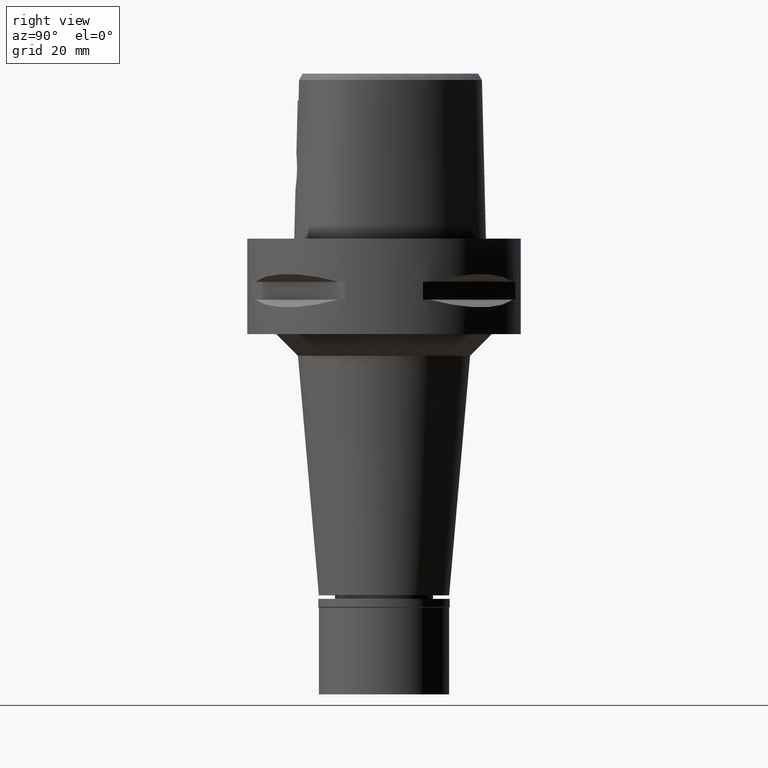
[diagram: clean part render]
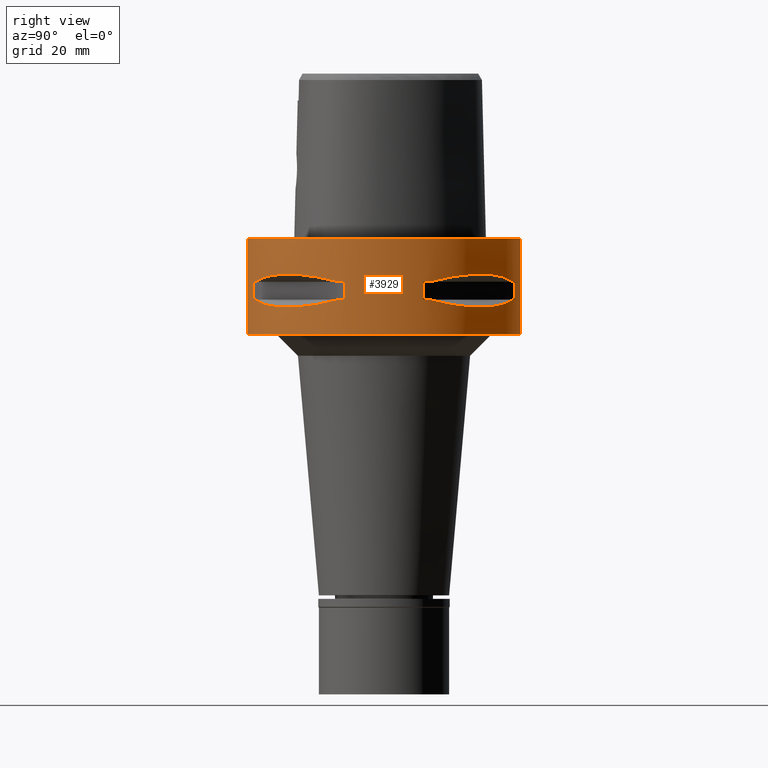
[diagram: same view with one face highlighted and labeled with its STEP entity id]
A machine part, right view. The second image highlights one B-rep face of the part: STEP entity #3929.
In plain terms, the highlighted cylindrical surface (partial cylindrical patch) has radius 31.5 mm, axis along (0, 0, -1).
Its self-contained STEP definition (entity closure, byte-faithful):
#47 = DIRECTION ( 'NONE',  ( 0.0000000000000000000, 0.0000000000000000000, -1.000000000000000000 ) ) ;
#80 = ORIENTED_EDGE ( 'NONE', *, *, #2162, .T. ) ;
#85 = VERTEX_POINT ( 'NONE', #2037 ) ;
#115 = ORIENTED_EDGE ( 'NONE', *, *, #4686, .T. ) ;
#130 = CARTESIAN_POINT ( 'NONE',  ( 12.70097436192362572, 28.92472615202281006, -9.353533115182571578 ) ) ;
#132 = CARTESIAN_POINT ( 'NONE',  ( 30.19251670572000279, 8.981198972017999438, -9.950000000000001066 ) ) ;
#165 = CARTESIAN_POINT ( 'NONE',  ( 18.86897208075581034, -25.32725744465475515, -15.69588095933493932 ) ) ;
#167 = LINE ( 'NONE', #2151, #1222 ) ;
#180 = FACE_OUTER_BOUND ( 'NONE', #223, .T. ) ;
#197 = VERTEX_POINT ( 'NONE', #3954 ) ;
#223 = EDGE_LOOP ( 'NONE', ( #1803, #1271, #896, #2347 ) ) ;
#241 = DIRECTION ( 'NONE',  ( 0.0000000000000000000, 0.0000000000000000000, 1.000000000000000000 ) ) ;
#308 = EDGE_CURVE ( 'NONE', #3439, #2388, #1244, .T. ) ;
#342 = DIRECTION ( 'NONE',  ( 0.0000000000000000000, 0.0000000000000000000, -1.000000000000000000 ) ) ;
#395 = EDGE_CURVE ( 'NONE', #3832, #2908, #852, .T. ) ;
#397 = DIRECTION ( 'NONE',  ( 0.0000000000000000000, -1.000000000000000000, 0.0000000000000000000 ) ) ;
#405 = DIRECTION ( 'NONE',  ( 0.9433937698468619626, -0.3316748332540863653, 0.0000000000000000000 ) ) ;
#413 = DIRECTION ( 'NONE',  ( 0.0000000000000000000, 0.0000000000000000000, -1.000000000000000000 ) ) ;
#452 = VERTEX_POINT ( 'NONE', #2332 ) ;
#458 = EDGE_CURVE ( 'NONE', #1776, #2132, #2190, .T. ) ;
#482 = CARTESIAN_POINT ( 'NONE',  ( 14.89252659056261052, 27.86285265926905197, -15.10765629751539230 ) ) ;
#518 = CARTESIAN_POINT ( 'NONE',  ( 0.0000000000000000000, 0.0000000000000000000, -14.05000000000000071 ) ) ;
#522 = CARTESIAN_POINT ( 'NONE',  ( 25.37277178176730885, 18.81455742151815969, -8.309746333162701504 ) ) ;
#526 = ORIENTED_EDGE ( 'NONE', *, *, #4811, .F. ) ;
#533 = ORIENTED_EDGE ( 'NONE', *, *, #3758, .T. ) ;
#567 = EDGE_LOOP ( 'NONE', ( #533, #1633, #115, #4599, #80, #526, #1249, #2555 ) ) ;
#591 = ORIENTED_EDGE ( 'NONE', *, *, #4437, .T. ) ;
#683 = DIRECTION ( 'NONE',  ( 0.0000000000000000000, 0.0000000000000000000, -1.000000000000000000 ) ) ;
#712 = CIRCLE ( 'NONE', #3408, 31.50000000000000000 ) ;
#746 = DIRECTION ( 'NONE',  ( 0.0000000000000000000, 0.0000000000000000000, 1.000000000000000000 ) ) ;
#754 = CARTESIAN_POINT ( 'NONE',  ( 18.81455742151816324, -25.37277178176729819, -8.309746333162701504 ) ) ;
#756 = CARTESIAN_POINT ( 'NONE',  ( 29.71690375017999841, 10.44775724750000023, -14.05000000000000071 ) ) ;
#759 = CARTESIAN_POINT ( 'NONE',  ( 0.0000000000000000000, 0.0000000000000000000, -14.05000000000000071 ) ) ;
#772 = CARTESIAN_POINT ( 'NONE',  ( 30.19251670572000279, 8.981198972017999438, -14.05000000000000071 ) ) ;
#776 = B_SPLINE_CURVE_WITH_KNOTS ( 'NONE', 3,
 ( #1743, #3678, #2812, #3287, #969, #2900, #4796, #4853, #2121, #1268, #165, #2439, #1961, #3510, #1329, #2492, #779, #2467, #4469, #4003, #4026, #1356, #3611, #3644 ),
 .UNSPECIFIED., .F., .F.,
 ( 4, 1, 1, 1, 1, 1, 2, 2, 2, 1, 1, 1, 1, 1, 2, 2, 4 ),
 ( 0.0000000000000000000, 0.1249999999999912292, 0.1874999999999869826, 0.2187499999999850120, 0.2343749999999839295, 0.2421874999999835409, 0.2460937499999835687, 0.2499999999999836242, 0.4999999999999924505, 0.6249999999999968914, 0.6874999999999992228, 0.7187500000000003331, 0.7343750000000009992, 0.7421875000000014433, 0.7460937500000016653, 0.7500000000000019984, 1.000000000000000000 ),
 .UNSPECIFIED. ) ;
#779 = CARTESIAN_POINT ( 'NONE',  ( 26.29071741523690875, -17.35163608579770766, -15.46976201925451022 ) ) ;
#787 = VECTOR ( 'NONE', #3143, 1000.000000000000000 ) ;
#845 = CARTESIAN_POINT ( 'NONE',  ( 0.0000000000000000000, 31.50000000000000000, 0.0000000000000000000 ) ) ;
#848 = CARTESIAN_POINT ( 'NONE',  ( 0.0000000000000000000, 0.0000000000000000000, -9.950000000000001066 ) ) ;
#852 = LINE ( 'NONE', #2733, #787 ) ;
#887 = VERTEX_POINT ( 'NONE', #2186 ) ;
#896 = ORIENTED_EDGE ( 'NONE', *, *, #1220, .T. ) ;
#909 = DIRECTION ( 'NONE',  ( 0.3316748332540863653, 0.9433937698468619626, 0.0000000000000000000 ) ) ;
#933 = DIRECTION ( 'NONE',  ( 0.9433937698468619626, 0.3316748332540863653, 0.0000000000000000000 ) ) ;
#969 = CARTESIAN_POINT ( 'NONE',  ( 16.03138450079452682, -27.11872488588860008, -15.26880420107959146 ) ) ;
#1110 = CARTESIAN_POINT ( 'NONE',  ( 10.44775724750000023, 29.71690375017999841, -9.949999999998999201 ) ) ;
#1129 = CARTESIAN_POINT ( 'NONE',  ( 18.59229662065117594, 25.43927894891756125, -15.62866126334438732 ) ) ;
#1137 = VECTOR ( 'NONE', #3251, 1000.000000000000000 ) ;
#1149 = CARTESIAN_POINT ( 'NONE',  ( 12.70092055722019531, -28.92474506847807092, -9.353547358250271060 ) ) ;
#1159 = B_SPLINE_CURVE_WITH_KNOTS ( 'NONE', 3,
 ( #756, #2279, #1468, #4632, #4193, #2252, #1870, #3425, #3814, #3839, #3468, #1895, #3447, #5015, #1129, #2675, #3985, #1612, #4700, #1176, #3213, #482, #2371, #3884 ),
 .UNSPECIFIED., .F., .F.,
 ( 4, 1, 1, 1, 1, 1, 2, 2, 2, 1, 1, 1, 1, 1, 2, 2, 4 ),
 ( 0.0000000000000000000, 0.1249999999999912292, 0.1874999999999869826, 0.2187499999999850120, 0.2343749999999839295, 0.2421874999999835409, 0.2460937499999835687, 0.2499999999999836242, 0.4999999999999924505, 0.6249999999999968914, 0.6874999999999992228, 0.7187500000000003331, 0.7343750000000009992, 0.7421875000000014433, 0.7460937500000016653, 0.7500000000000019984, 1.000000000000000000 ),
 .UNSPECIFIED. ) ;
#1166 = CARTESIAN_POINT ( 'NONE',  ( 10.44775724750000023, 29.71690375017999841, -14.05000000000000071 ) ) ;
#1169 = VERTEX_POINT ( 'NONE', #1845 ) ;
#1176 = CARTESIAN_POINT ( 'NONE',  ( 16.98999780422078132, 26.52527364208593141, -15.41788098766319060 ) ) ;
#1179 = EDGE_CURVE ( 'NONE', #4627, #3299, #1159, .T. ) ;
#1184 = EDGE_CURVE ( 'NONE', #452, #4932, #2115, .T. ) ;
#1193 = DIRECTION ( 'NONE',  ( 0.0000000000000000000, 1.000000000000000000, 0.0000000000000000000 ) ) ;
#1220 = EDGE_CURVE ( 'NONE', #887, #3763, #712, .T. ) ;
#1222 = VECTOR ( 'NONE', #241, 1000.000000000000000 ) ;
#1244 = LINE ( 'NONE', #2362, #4063 ) ;
#1249 = ORIENTED_EDGE ( 'NONE', *, *, #458, .T. ) ;
#1257 = CARTESIAN_POINT ( 'NONE',  ( 29.71690375017999841, 10.44775724750000023, -14.05000000000000071 ) ) ;
#1267 = CIRCLE ( 'NONE', #2801, 31.50000000000001776 ) ;
#1268 = CARTESIAN_POINT ( 'NONE',  ( 16.89910283486517528, -26.58330558444475145, -15.40446471307230070 ) ) ;
#1271 = ORIENTED_EDGE ( 'NONE', *, *, #3764, .T. ) ;
#1298 = CARTESIAN_POINT ( 'NONE',  ( 29.71690375017999841, 10.44775724750000023, -9.949999999998999201 ) ) ;
#1304 = AXIS2_PLACEMENT_3D ( 'NONE', #2628, #1897, #4195 ) ;
#1329 = CARTESIAN_POINT ( 'NONE',  ( 25.43927894891756125, -18.59229662065117594, -15.62866126334438732 ) ) ;
#1356 = CARTESIAN_POINT ( 'NONE',  ( 27.86285265926905197, -14.89252659056261052, -15.10765629751539230 ) ) ;
#1360 = AXIS2_PLACEMENT_3D ( 'NONE', #2671, #683, #2693 ) ;
#1377 = CARTESIAN_POINT ( 'NONE',  ( 30.19251670572000279, -8.981198972017999438, -9.950000000000001066 ) ) ;
#1415 = VERTEX_POINT ( 'NONE', #1556 ) ;
#1418 = CARTESIAN_POINT ( 'NONE',  ( 8.981198972017999438, -30.19251670572000279, -14.05000000000000071 ) ) ;
#1468 = CARTESIAN_POINT ( 'NONE',  ( 28.62019653467925551, 13.25636937906381974, -14.74888225542034448 ) ) ;
#1556 = CARTESIAN_POINT ( 'NONE',  ( 30.19251670572000279, -8.981198972019999616, -14.05000000000000071 ) ) ;
#1565 = CARTESIAN_POINT ( 'NONE',  ( 28.92472615202282427, -12.70097436192360973, -9.353533115182571578 ) ) ;
#1567 = DIRECTION ( 'NONE',  ( 0.0000000000000000000, 0.0000000000000000000, 1.000000000000000000 ) ) ;
#1612 = CARTESIAN_POINT ( 'NONE',  ( 17.14106442934748742, 26.42800887047532754, -15.43984550238493547 ) ) ;
#1620 = LINE ( 'NONE', #845, #1137 ) ;
#1633 = ORIENTED_EDGE ( 'NONE', *, *, #308, .F. ) ;
#1667 = EDGE_CURVE ( 'NONE', #2132, #1932, #2678, .T. ) ;
#1673 = VERTEX_POINT ( 'NONE', #4441 ) ;
#1681 = CARTESIAN_POINT ( 'NONE',  ( 27.88214534477226536, 14.84422749186517265, -8.906206096533262340 ) ) ;
#1694 = VERTEX_POINT ( 'NONE', #2546 ) ;
#1743 = CARTESIAN_POINT ( 'NONE',  ( 10.44775724750000023, -29.71690375017999841, -14.05000000000000071 ) ) ;
#1758 = EDGE_LOOP ( 'NONE', ( #2268, #3391, #4813, #2823, #3285, #2243, #591, #5034 ) ) ;
#1759 = FACE_BOUND ( 'NONE', #1758, .T. ) ;
#1776 = VERTEX_POINT ( 'NONE', #4112 ) ;
#1803 = ORIENTED_EDGE ( 'NONE', *, *, #3396, .T. ) ;
#1845 = CARTESIAN_POINT ( 'NONE',  ( 0.0000000000000000000, 31.50000000000000000, 0.0000000000000000000 ) ) ;
#1869 = AXIS2_PLACEMENT_3D ( 'NONE', #518, #413, #933 ) ;
#1870 = CARTESIAN_POINT ( 'NONE',  ( 26.70521063584408950, 16.70616724746141202, -15.37546661817775373 ) ) ;
#1887 = DIRECTION ( 'NONE',  ( 0.3316748332540863653, -0.9433937698468619626, 0.0000000000000000000 ) ) ;
#1895 = CARTESIAN_POINT ( 'NONE',  ( 23.89673728055697310, 20.65093790435582122, -15.83935804901768307 ) ) ;
#1897 = DIRECTION ( 'NONE',  ( 0.0000000000000000000, 0.0000000000000000000, 1.000000000000000000 ) ) ;
#1920 = CARTESIAN_POINT ( 'NONE',  ( 29.71690375017999841, -10.44775724750000023, -9.949999999998999201 ) ) ;
#1932 = VERTEX_POINT ( 'NONE', #1110 ) ;
#1961 = CARTESIAN_POINT ( 'NONE',  ( 23.08532645888130830, -21.46242677078074834, -15.83938991065315172 ) ) ;
#2018 = CIRCLE ( 'NONE', #4718, 31.50000000000000711 ) ;
#2037 = CARTESIAN_POINT ( 'NONE',  ( 10.44775724750000023, -29.71690375017999841, -9.949999999998999201 ) ) ;
#2055 = CARTESIAN_POINT ( 'NONE',  ( 0.0000000000000000000, 31.50000000000000000, -22.00000000000000000 ) ) ;
#2084 = CARTESIAN_POINT ( 'NONE',  ( 14.84430321591224278, 27.88210502977329597, -8.906184731931707788 ) ) ;
#2115 = CIRCLE ( 'NONE', #2829, 31.50000000000000711 ) ;
#2119 = AXIS2_PLACEMENT_3D ( 'NONE', #848, #4411, #909 ) ;
#2121 = CARTESIAN_POINT ( 'NONE',  ( 16.86571563436727317, -26.60451452154724805, -15.39949295786030348 ) ) ;
#2132 = VERTEX_POINT ( 'NONE', #3547 ) ;
#2151 = CARTESIAN_POINT ( 'NONE',  ( 30.19251670572000279, -8.981198972017999438, -14.05000000000000071 ) ) ;
#2162 = EDGE_CURVE ( 'NONE', #4627, #3327, #2674, .T. ) ;
#2186 = CARTESIAN_POINT ( 'NONE',  ( 0.0000000000000000000, -31.50000000000000000, -22.00000000000000000 ) ) ;
#2190 = CIRCLE ( 'NONE', #4221, 31.50000000000001776 ) ;
#2211 = DIRECTION ( 'NONE',  ( 0.0000000000000000000, 0.0000000000000000000, -1.000000000000000000 ) ) ;
#2219 = CARTESIAN_POINT ( 'NONE',  ( 8.981198972019999616, 30.19251670572000279, -14.05000000000000071 ) ) ;
#2243 = ORIENTED_EDGE ( 'NONE', *, *, #395, .F. ) ;
#2252 = CARTESIAN_POINT ( 'NONE',  ( 26.84474411198545596, 16.48208282229538213, -15.34094883778132790 ) ) ;
#2254 = EDGE_CURVE ( 'NONE', #1169, #3763, #1620, .T. ) ;
#2268 = ORIENTED_EDGE ( 'NONE', *, *, #1184, .T. ) ;
#2279 = CARTESIAN_POINT ( 'NONE',  ( 29.31542262584164504, 11.58970337495982328, -14.35229357167352049 ) ) ;
#2313 = CARTESIAN_POINT ( 'NONE',  ( 0.0000000000000000000, 0.0000000000000000000, -14.05000000000000071 ) ) ;
#2317 = CARTESIAN_POINT ( 'NONE',  ( 20.64154884334739393, -23.90617837140509039, -8.160627831333192361 ) ) ;
#2319 = DIRECTION ( 'NONE',  ( 0.0000000000000000000, 0.0000000000000000000, 1.000000000000000000 ) ) ;
#2332 = CARTESIAN_POINT ( 'NONE',  ( 29.71690375017999841, -10.44775724750000023, -9.949999999998999201 ) ) ;
#2346 = AXIS2_PLACEMENT_3D ( 'NONE', #4489, #2211, #397 ) ;
#2347 = ORIENTED_EDGE ( 'NONE', *, *, #2254, .F. ) ;
#2362 = CARTESIAN_POINT ( 'NONE',  ( 8.981198972017999438, 30.19251670572000279, -14.05000000000000071 ) ) ;
#2371 = CARTESIAN_POINT ( 'NONE',  ( 12.73197616787212993, 28.91382665369246752, -14.65467361753630549 ) ) ;
#2388 = VERTEX_POINT ( 'NONE', #3606 ) ;
#2393 = VECTOR ( 'NONE', #3704, 1000.000000000000000 ) ;
#2430 = B_SPLINE_CURVE_WITH_KNOTS ( 'NONE', 3,
 ( #4654, #1149, #4261, #754, #2317, #3879, #3492, #5063, #1565, #1920 ),
 .UNSPECIFIED., .F., .F.,
 ( 4, 2, 2, 2, 4 ),
 ( 0.0000000000000000000, 0.2500000000000001110, 0.5000000000000000000, 0.7500000000000000000, 1.000000000000000000 ),
 .UNSPECIFIED. ) ;
#2431 = CIRCLE ( 'NONE', #1304, 31.50000000000001776 ) ;
#2439 = CARTESIAN_POINT ( 'NONE',  ( 20.65093790435582122, -23.89673728055697310, -15.83935804901768307 ) ) ;
#2467 = CARTESIAN_POINT ( 'NONE',  ( 26.42800887047532754, -17.14106442934748742, -15.43984550238493547 ) ) ;
#2492 = CARTESIAN_POINT ( 'NONE',  ( 26.01217882834739470, -17.76952662671988392, -15.52665221626113912 ) ) ;
#2546 = CARTESIAN_POINT ( 'NONE',  ( 10.44775724750000023, -29.71690375017999841, -14.05000000000000071 ) ) ;
#2555 = ORIENTED_EDGE ( 'NONE', *, *, #1667, .T. ) ;
#2628 = CARTESIAN_POINT ( 'NONE',  ( 0.0000000000000000000, 0.0000000000000000000, -9.950000000000001066 ) ) ;
#2671 = CARTESIAN_POINT ( 'NONE',  ( 0.0000000000000000000, 0.0000000000000000000, -14.05000000000000071 ) ) ;
#2674 = CIRCLE ( 'NONE', #1869, 31.50000000000000711 ) ;
#2675 = CARTESIAN_POINT ( 'NONE',  ( 17.76952662671988392, 26.01217882834739470, -15.52665221626113912 ) ) ;
#2678 = B_SPLINE_CURVE_WITH_KNOTS ( 'NONE', 3,
 ( #1298, #3610, #1681, #522, #3227, #4794, #2844, #2084, #130, #2872 ),
 .UNSPECIFIED., .F., .F.,
 ( 4, 2, 2, 2, 4 ),
 ( 0.0000000000000000000, 0.2500000000000000000, 0.5000000000000000000, 0.7500000000000000000, 1.000000000000000000 ),
 .UNSPECIFIED. ) ;
#2693 = DIRECTION ( 'NONE',  ( 0.2851174276831918153, 0.9584925938322735872, 0.0000000000000000000 ) ) ;
#2733 = CARTESIAN_POINT ( 'NONE',  ( 8.981198972017999438, -30.19251670572000279, -9.950000000000001066 ) ) ;
#2758 = AXIS2_PLACEMENT_3D ( 'NONE', #4304, #3262, #1193 ) ;
#2796 = CARTESIAN_POINT ( 'NONE',  ( 0.0000000000000000000, 0.0000000000000000000, -9.950000000000001066 ) ) ;
#2801 = AXIS2_PLACEMENT_3D ( 'NONE', #759, #4291, #3520 ) ;
#2812 = CARTESIAN_POINT ( 'NONE',  ( 13.25636937906381974, -28.62019653467925551, -14.74888225542034448 ) ) ;
#2823 = ORIENTED_EDGE ( 'NONE', *, *, #4715, .F. ) ;
#2829 = AXIS2_PLACEMENT_3D ( 'NONE', #2796, #2319, #405 ) ;
#2844 = CARTESIAN_POINT ( 'NONE',  ( 18.81462633043445010, 25.37272068390330659, -8.309724968561150504 ) ) ;
#2845 = LINE ( 'NONE', #132, #2393 ) ;
#2872 = CARTESIAN_POINT ( 'NONE',  ( 10.44775724750000023, 29.71690375017999841, -9.949999999998999201 ) ) ;
#2900 = CARTESIAN_POINT ( 'NONE',  ( 16.48208282229538213, -26.84474411198545596, -15.34094883778132790 ) ) ;
#2908 = VERTEX_POINT ( 'NONE', #1418 ) ;
#2916 = CYLINDRICAL_SURFACE ( 'NONE', #2346, 31.50000000000000000 ) ;
#2999 = CIRCLE ( 'NONE', #2119, 31.50000000000000711 ) ;
#3143 = DIRECTION ( 'NONE',  ( 0.0000000000000000000, 0.0000000000000000000, -1.000000000000000000 ) ) ;
#3186 = CARTESIAN_POINT ( 'NONE',  ( 0.0000000000000000000, 0.0000000000000000000, -22.00000000000000000 ) ) ;
#3213 = CARTESIAN_POINT ( 'NONE',  ( 16.96123479564944247, 26.54368690921640450, -15.41365572341321766 ) ) ;
#3225 = CARTESIAN_POINT ( 'NONE',  ( 0.0000000000000000000, -31.50000000000000000, 0.0000000000000000000 ) ) ;
#3227 = CARTESIAN_POINT ( 'NONE',  ( 23.90617837140503354, 20.64154884334747209, -8.160627831333194138 ) ) ;
#3251 = DIRECTION ( 'NONE',  ( 0.0000000000000000000, 0.0000000000000000000, -1.000000000000000000 ) ) ;
#3262 = DIRECTION ( 'NONE',  ( 0.0000000000000000000, 0.0000000000000000000, -1.000000000000000000 ) ) ;
#3285 = ORIENTED_EDGE ( 'NONE', *, *, #4062, .T. ) ;
#3287 = CARTESIAN_POINT ( 'NONE',  ( 15.11986997311774417, -27.64634172017658642, -15.11207862404057423 ) ) ;
#3299 = VERTEX_POINT ( 'NONE', #1166 ) ;
#3327 = VERTEX_POINT ( 'NONE', #772 ) ;
#3391 = ORIENTED_EDGE ( 'NONE', *, *, #3433, .F. ) ;
#3396 = EDGE_CURVE ( 'NONE', #1169, #197, #4317, .T. ) ;
#3408 = AXIS2_PLACEMENT_3D ( 'NONE', #3186, #1567, #3913 ) ;
#3425 = CARTESIAN_POINT ( 'NONE',  ( 26.64486562695712379, 16.80193241490734835, -15.38992683735741451 ) ) ;
#3433 = EDGE_CURVE ( 'NONE', #1415, #4932, #167, .T. ) ;
#3439 = VERTEX_POINT ( 'NONE', #2219 ) ;
#3447 = CARTESIAN_POINT ( 'NONE',  ( 21.46242677078074834, 23.08532645888130830, -15.83938991065315172 ) ) ;
#3468 = CARTESIAN_POINT ( 'NONE',  ( 25.32725744465475515, 18.86897208075581034, -15.69588095933493932 ) ) ;
#3492 = CARTESIAN_POINT ( 'NONE',  ( 25.37272068390325330, -18.81462633043451405, -8.309724968561150504 ) ) ;
#3510 = CARTESIAN_POINT ( 'NONE',  ( 24.23018836745477245, -20.18579225686149314, -15.78559396979075125 ) ) ;
#3520 = DIRECTION ( 'NONE',  ( 0.9584925938322735872, -0.2851174276831918153, 0.0000000000000000000 ) ) ;
#3527 = DIRECTION ( 'NONE',  ( 0.9584925938322735872, 0.2851174276831918153, 0.0000000000000000000 ) ) ;
#3532 = CIRCLE ( 'NONE', #1360, 31.50000000000001776 ) ;
#3547 = CARTESIAN_POINT ( 'NONE',  ( 29.71690375017999841, 10.44775724750000023, -9.949999999998999201 ) ) ;
#3606 = CARTESIAN_POINT ( 'NONE',  ( 8.981198972017999438, 30.19251670572000279, -9.950000000000001066 ) ) ;
#3610 = CARTESIAN_POINT ( 'NONE',  ( 28.92474506847807803, 12.70092055722014379, -9.353547358250267507 ) ) ;
#3611 = CARTESIAN_POINT ( 'NONE',  ( 28.91382665369246752, -12.73197616787212993, -14.65467361753630549 ) ) ;
#3644 = CARTESIAN_POINT ( 'NONE',  ( 29.71690375017999841, -10.44775724750000023, -14.05000000000000071 ) ) ;
#3678 = CARTESIAN_POINT ( 'NONE',  ( 11.58970337495982328, -29.31542262584164504, -14.35229357167352049 ) ) ;
#3704 = DIRECTION ( 'NONE',  ( 0.0000000000000000000, 0.0000000000000000000, -1.000000000000000000 ) ) ;
#3758 = EDGE_CURVE ( 'NONE', #1932, #2388, #2999, .T. ) ;
#3763 = VERTEX_POINT ( 'NONE', #2055 ) ;
#3764 = EDGE_CURVE ( 'NONE', #197, #887, #4790, .T. ) ;
#3814 = CARTESIAN_POINT ( 'NONE',  ( 26.60451452154724805, 16.86571563436727317, -15.39949295786030348 ) ) ;
#3832 = VERTEX_POINT ( 'NONE', #4894 ) ;
#3839 = CARTESIAN_POINT ( 'NONE',  ( 26.58330558444475145, 16.89910283486517528, -15.40446471307230070 ) ) ;
#3879 = CARTESIAN_POINT ( 'NONE',  ( 23.90617837140503710, -20.64154884334746143, -8.160613588441446353 ) ) ;
#3884 = CARTESIAN_POINT ( 'NONE',  ( 10.44775724750000023, 29.71690375017999841, -14.05000000000000071 ) ) ;
#3913 = DIRECTION ( 'NONE',  ( 0.0000000000000000000, -1.000000000000000000, 0.0000000000000000000 ) ) ;
#3924 = DIRECTION ( 'NONE',  ( 0.0000000000000000000, 0.0000000000000000000, 1.000000000000000000 ) ) ;
#3929 = ADVANCED_FACE ( 'NONE', ( #180, #1759, #4869 ), #2916, .T. ) ;
#3954 = CARTESIAN_POINT ( 'NONE',  ( 0.0000000000000000000, -31.50000000000000000, 0.0000000000000000000 ) ) ;
#3985 = CARTESIAN_POINT ( 'NONE',  ( 17.35163608579770766, 26.29071741523690875, -15.46976201925451022 ) ) ;
#4003 = CARTESIAN_POINT ( 'NONE',  ( 26.52527364208593141, -16.98999780422078132, -15.41788098766319060 ) ) ;
#4026 = CARTESIAN_POINT ( 'NONE',  ( 26.54368690921640450, -16.96123479564944247, -15.41365572341321766 ) ) ;
#4062 = EDGE_CURVE ( 'NONE', #1694, #2908, #2018, .T. ) ;
#4063 = VECTOR ( 'NONE', #3924, 1000.000000000000000 ) ;
#4112 = CARTESIAN_POINT ( 'NONE',  ( 30.19251670572000279, 8.981198972019999616, -9.950000000000001066 ) ) ;
#4193 = CARTESIAN_POINT ( 'NONE',  ( 27.11872488588860008, 16.03138450079452682, -15.26880420107959146 ) ) ;
#4195 = DIRECTION ( 'NONE',  ( 0.2851174276831918153, -0.9584925938322735872, 0.0000000000000000000 ) ) ;
#4217 = EDGE_CURVE ( 'NONE', #85, #452, #2430, .T. ) ;
#4221 = AXIS2_PLACEMENT_3D ( 'NONE', #4254, #746, #3527 ) ;
#4254 = CARTESIAN_POINT ( 'NONE',  ( 0.0000000000000000000, 0.0000000000000000000, -9.950000000000001066 ) ) ;
#4261 = CARTESIAN_POINT ( 'NONE',  ( 14.84422749186521351, -27.88214534477224049, -8.906206096533258787 ) ) ;
#4291 = DIRECTION ( 'NONE',  ( 0.0000000000000000000, 0.0000000000000000000, -1.000000000000000000 ) ) ;
#4304 = CARTESIAN_POINT ( 'NONE',  ( 0.0000000000000000000, 0.0000000000000000000, 0.0000000000000000000 ) ) ;
#4317 = CIRCLE ( 'NONE', #2758, 31.50000000000000000 ) ;
#4411 = DIRECTION ( 'NONE',  ( 0.0000000000000000000, 0.0000000000000000000, 1.000000000000000000 ) ) ;
#4437 = EDGE_CURVE ( 'NONE', #3832, #85, #2431, .T. ) ;
#4441 = CARTESIAN_POINT ( 'NONE',  ( 29.71690375017999841, -10.44775724750000023, -14.05000000000000071 ) ) ;
#4469 = CARTESIAN_POINT ( 'NONE',  ( 26.48642424310472876, -17.05047092244258522, -15.42670883407663496 ) ) ;
#4489 = CARTESIAN_POINT ( 'NONE',  ( 0.0000000000000000000, 0.0000000000000000000, 4.915000000000000036 ) ) ;
#4599 = ORIENTED_EDGE ( 'NONE', *, *, #1179, .F. ) ;
#4627 = VERTEX_POINT ( 'NONE', #1257 ) ;
#4632 = CARTESIAN_POINT ( 'NONE',  ( 27.64634172017658642, 15.11986997311774417, -15.11207862404057423 ) ) ;
#4654 = CARTESIAN_POINT ( 'NONE',  ( 10.44775724750000023, -29.71690375017999841, -9.949999999998999201 ) ) ;
#4686 = EDGE_CURVE ( 'NONE', #3439, #3299, #3532, .T. ) ;
#4700 = CARTESIAN_POINT ( 'NONE',  ( 17.05047092244258522, 26.48642424310472876, -15.42670883407663496 ) ) ;
#4715 = EDGE_CURVE ( 'NONE', #1694, #1673, #776, .T. ) ;
#4718 = AXIS2_PLACEMENT_3D ( 'NONE', #2313, #342, #1887 ) ;
#4790 = LINE ( 'NONE', #3225, #4964 ) ;
#4794 = CARTESIAN_POINT ( 'NONE',  ( 20.64154884334739037, 23.90617837140508684, -8.160613588441446353 ) ) ;
#4796 = CARTESIAN_POINT ( 'NONE',  ( 16.70616724746141202, -26.70521063584408950, -15.37546661817775373 ) ) ;
#4811 = EDGE_CURVE ( 'NONE', #1776, #3327, #2845, .T. ) ;
#4813 = ORIENTED_EDGE ( 'NONE', *, *, #4996, .T. ) ;
#4853 = CARTESIAN_POINT ( 'NONE',  ( 16.80193241490734835, -26.64486562695712379, -15.38992683735741451 ) ) ;
#4869 = FACE_BOUND ( 'NONE', #567, .T. ) ;
#4894 = CARTESIAN_POINT ( 'NONE',  ( 8.981198972019999616, -30.19251670572000279, -9.950000000000001066 ) ) ;
#4932 = VERTEX_POINT ( 'NONE', #1377 ) ;
#4964 = VECTOR ( 'NONE', #47, 1000.000000000000000 ) ;
#4996 = EDGE_CURVE ( 'NONE', #1415, #1673, #1267, .T. ) ;
#5015 = CARTESIAN_POINT ( 'NONE',  ( 20.18579225686149314, 24.23018836745477245, -15.78559396979075125 ) ) ;
#5034 = ORIENTED_EDGE ( 'NONE', *, *, #4217, .T. ) ;
#5063 = CARTESIAN_POINT ( 'NONE',  ( 27.88210502977326755, -14.84430321591229607, -8.906184731931707788 ) ) ;